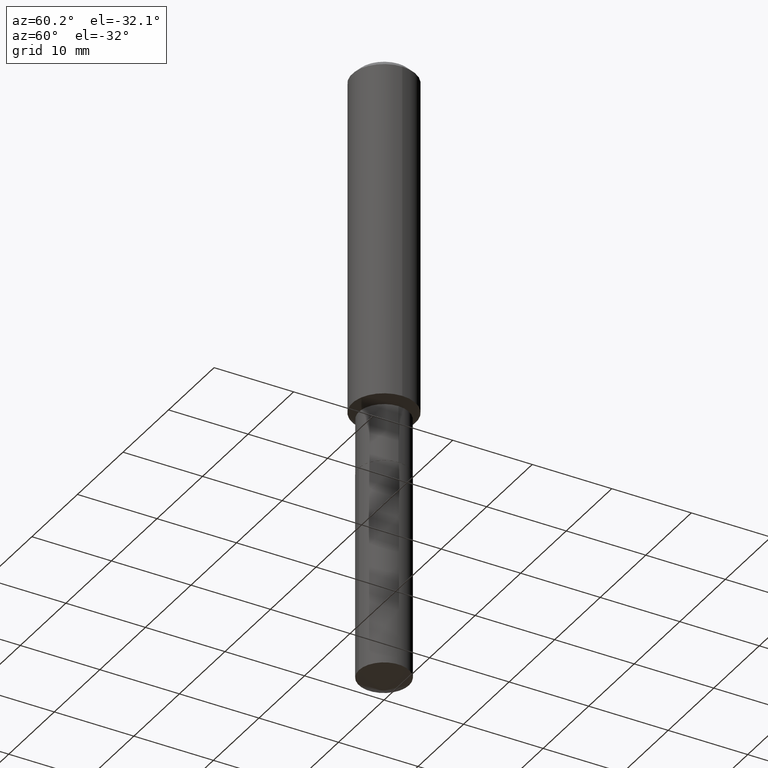
[diagram: clean part render]
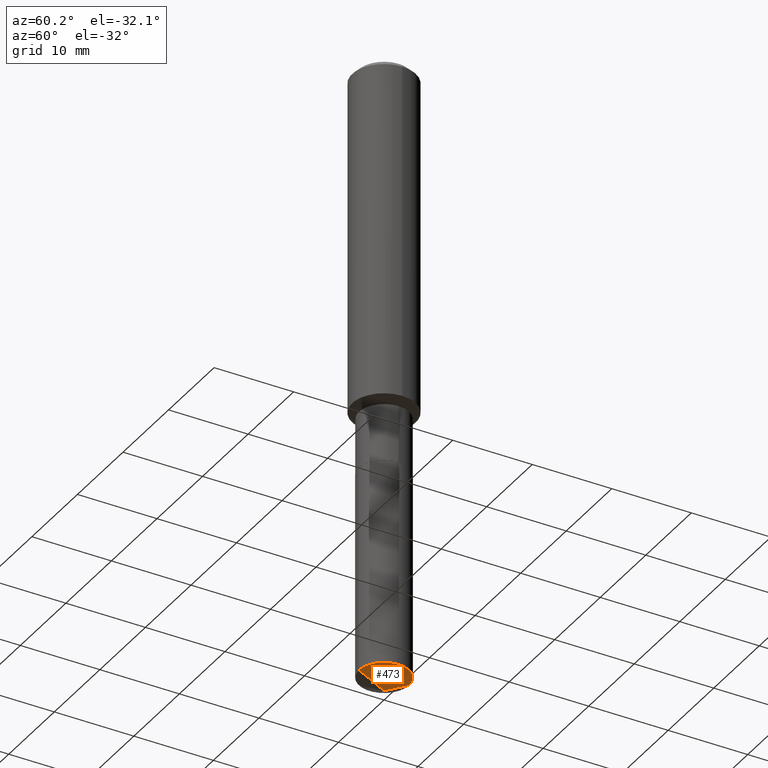
[diagram: same view with one face highlighted and labeled with its STEP entity id]
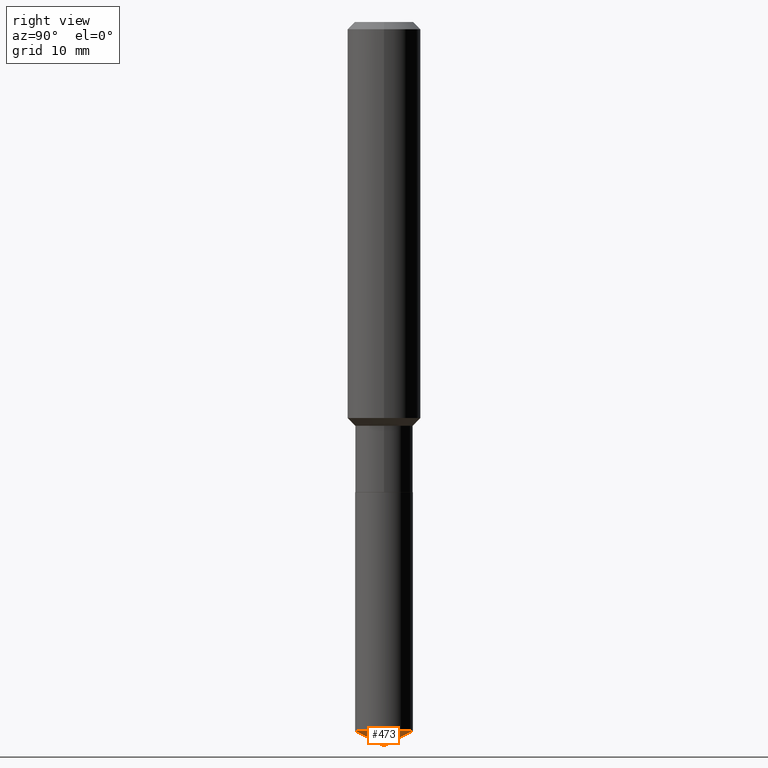
[diagram: same view with one face highlighted and labeled with its STEP entity id]
A machine part, auxiliary view. The second image highlights one B-rep face of the part: STEP entity #473.
A second angle (right view) of the same face is appended — the face is thin or edge-on in the first view.
In plain terms, the highlighted conical surface has half-angle 62 deg.
Its self-contained STEP definition (entity closure, byte-faithful):
#22 = CARTESIAN_POINT ( 'NONE',  ( 7.444779400821120837E-29, -1.062883761907277980E-14, -3.044268030473976872 ) ) ;
#35 = CARTESIAN_POINT ( 'NONE',  ( 7.606251894135016417E-29, -1.085869714746161919E-14, -3.110199999999999854 ) ) ;
#45 = CARTESIAN_POINT ( 'NONE',  ( 8.810729923425982785E-16, 0.1239999999999893548, -3.044268030473977760 ) ) ;
#56 = LINE ( 'NONE', #163, #213 ) ;
#60 = CIRCLE ( 'NONE', #302, 0.1239999999999999991 ) ;
#87 = VERTEX_POINT ( 'NONE', #35 ) ;
#90 = CARTESIAN_POINT ( 'NONE',  ( -8.867676931677782645E-28, 1.265944362609570079E-13, 36.25987874015748247 ) ) ;
#100 = EDGE_LOOP ( 'NONE', ( #192, #428, #271 ) ) ;
#126 = CARTESIAN_POINT ( 'NONE',  ( 7.605791100222397431E-29, -1.085935703057125161E-14, -3.110199999999999854 ) ) ;
#163 = CARTESIAN_POINT ( 'NONE',  ( 7.606255934753707533E-29, -1.085869714746161919E-14, -3.110199999999999854 ) ) ;
#176 = VERTEX_POINT ( 'NONE', #45 ) ;
#192 = ORIENTED_EDGE ( 'NONE', *, *, #323, .F. ) ;
#198 = DIRECTION ( 'NONE',  ( 6.273719981627763710E-15, 0.8829475928589293199, 0.4694715627858859208 ) ) ;
#200 = VERTEX_POINT ( 'NONE', #395 ) ;
#210 = DIRECTION ( 'NONE',  ( -6.982962677686265922E-15, -1.000000000000000000, 4.406206441393973340E-15 ) ) ;
#213 = VECTOR ( 'NONE', #198, 39.37007874015748854 ) ;
#240 = DIRECTION ( 'NONE',  ( -6.982962677686268288E-15, -1.000000000000000000, 3.541896320645563630E-15 ) ) ;
#245 = LINE ( 'NONE', #126, #346 ) ;
#248 = DIRECTION ( 'NONE',  ( -6.165590087286832874E-15, -0.8829475928589261002, 0.4694715627858920826 ) ) ;
#252 = DIRECTION ( 'NONE',  ( -2.445582886674495597E-29, 3.491317969089325236E-15, 1.000000000000000000 ) ) ;
#271 = ORIENTED_EDGE ( 'NONE', *, *, #275, .F. ) ;
#275 = EDGE_CURVE ( 'NONE', #200, #176, #60, .T. ) ;
#280 = FACE_OUTER_BOUND ( 'NONE', #100, .T. ) ;
#302 = AXIS2_PLACEMENT_3D ( 'NONE', #22, #252, #210 ) ;
#310 = AXIS2_PLACEMENT_3D ( 'NONE', #90, #356, #240 ) ;
#323 = EDGE_CURVE ( 'NONE', #87, #200, #245, .T. ) ;
#346 = VECTOR ( 'NONE', #248, 39.37007874015748854 ) ;
#356 = DIRECTION ( 'NONE',  ( -2.445582886674495597E-29, 3.491317969089325236E-15, 1.000000000000000000 ) ) ;
#395 = CARTESIAN_POINT ( 'NONE',  ( -8.658873720330223828E-16, -0.1240000000000106156, -3.044268030473976427 ) ) ;
#401 = CONICAL_SURFACE ( 'NONE', #310, 74.04434902938348273, 1.082104136236486269 ) ;
#414 = EDGE_CURVE ( 'NONE', #87, #176, #56, .T. ) ;
#428 = ORIENTED_EDGE ( 'NONE', *, *, #414, .T. ) ;
#473 = ADVANCED_FACE ( 'NONE', ( #280 ), #401, .T. ) ;